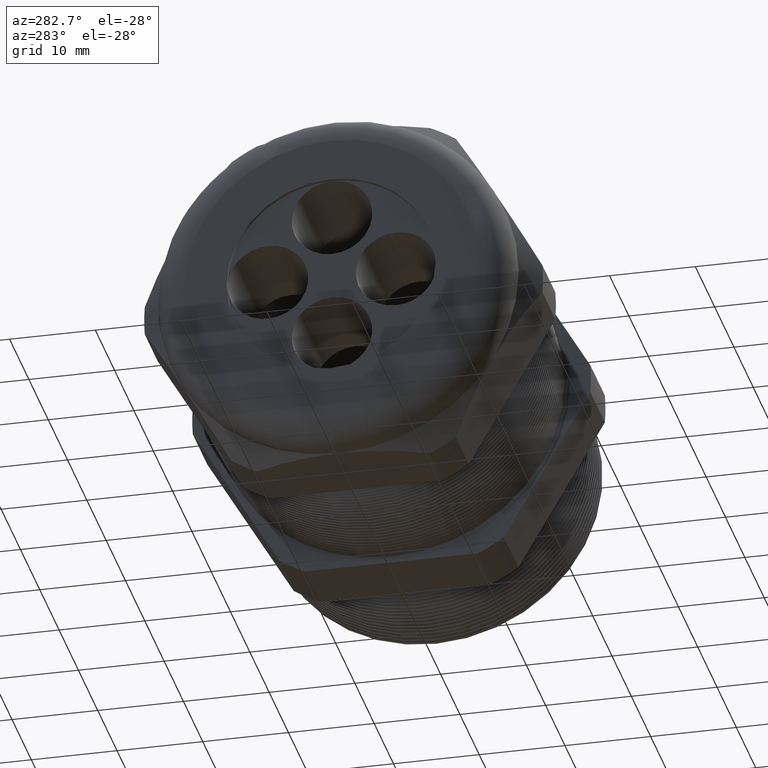
[diagram: clean part render]
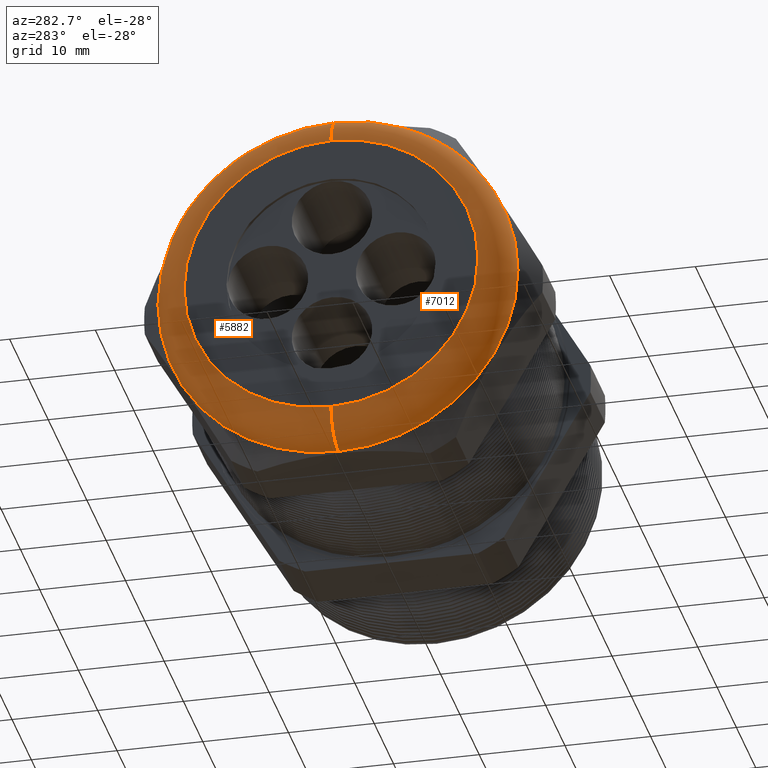
[diagram: same view with one multi-face feature highlighted, each face labeled with its STEP entity id]
A machine part, auxiliary view. The highlighted faces form ONE feature: a constant-radius fillet chain: 2 tangent blend faces with common blend radius 3.81 mm. The faces share edges in the B-rep.
Their STEP definitions:
[1] entity #5882 (Torus):
#1727 = CARTESIAN_POINT ( 'NONE',  ( -1.840000000000000100, 0.0000000000000000000, 0.6749999999999997100 ) ) ;
#1728 = CARTESIAN_POINT ( 'NONE',  ( -1.840000000000000100, 9.184850993605146000E-017, -0.6749999999999997100 ) ) ;
#1729 = DIRECTION ( 'NONE',  ( 0.0000000000000000000, -1.224646799147353200E-016, 1.000000000000000000 ) ) ;
#1730 = DIRECTION ( 'NONE',  ( 0.0000000000000000000, 1.000000000000000000, 1.224646799147353200E-016 ) ) ;
#1731 = CARTESIAN_POINT ( 'NONE',  ( -1.689999999999999900, 8.266365894244631900E-017, -0.6749999999999997100 ) ) ;
#1732 = AXIS2_PLACEMENT_3D ( 'NONE', #1731, #1730, #1729 ) ;
#1733 = CIRCLE ( 'NONE', #1732, 0.1499999999999999700 ) ;
#1734 = CARTESIAN_POINT ( 'NONE',  ( -1.689999999999999900, 1.010333609296566100E-016, 0.8249999999999998400 ) ) ;
#1735 = CARTESIAN_POINT ( 'NONE',  ( -1.689999999999999900, 0.0000000000000000000, -0.8249999999999998400 ) ) ;
#1736 = DIRECTION ( 'NONE',  ( 0.0000000000000000000, 0.0000000000000000000, 1.000000000000000000 ) ) ;
#1737 = DIRECTION ( 'NONE',  ( 1.000000000000000000, 0.0000000000000000000, 0.0000000000000000000 ) ) ;
#1738 = AXIS2_PLACEMENT_3D ( 'NONE', #1744, #1737, #1736 ) ;
#1739 = CIRCLE ( 'NONE', #1738, 0.8249999999999998400 ) ;
#1740 = DIRECTION ( 'NONE',  ( 0.0000000000000000000, 0.0000000000000000000, 1.000000000000000000 ) ) ;
#1741 = DIRECTION ( 'NONE',  ( -1.000000000000000000, 0.0000000000000000000, 0.0000000000000000000 ) ) ;
#1742 = AXIS2_PLACEMENT_3D ( 'NONE', #1745, #1741, #1740 ) ;
#1743 = TOROIDAL_SURFACE ( 'NONE', #1742, 0.6749999999999997100, 0.1499999999999999900 ) ;
#1744 = CARTESIAN_POINT ( 'NONE',  ( -1.689999999999999900, 0.0000000000000000000, 0.0000000000000000000 ) ) ;
#1745 = CARTESIAN_POINT ( 'NONE',  ( -1.689999999999999900, 0.0000000000000000000, 0.0000000000000000000 ) ) ;
#1746 = FACE_OUTER_BOUND ( 'NONE', #5883, .T. ) ;
#1815 = DIRECTION ( 'NONE',  ( 0.0000000000000000000, 0.0000000000000000000, 1.000000000000000000 ) ) ;
#1816 = DIRECTION ( 'NONE',  ( -1.000000000000000000, 0.0000000000000000000, 0.0000000000000000000 ) ) ;
#1817 = CARTESIAN_POINT ( 'NONE',  ( -1.840000000000000100, 0.0000000000000000000, 0.0000000000000000000 ) ) ;
#1818 = AXIS2_PLACEMENT_3D ( 'NONE', #1817, #1816, #1815 ) ;
#1819 = CIRCLE ( 'NONE', #1818, 0.6749999999999997100 ) ;
#1871 = DIRECTION ( 'NONE',  ( 0.0000000000000000000, 0.0000000000000000000, -1.000000000000000000 ) ) ;
#1872 = DIRECTION ( 'NONE',  ( 0.0000000000000000000, -1.000000000000000000, 0.0000000000000000000 ) ) ;
#1873 = CARTESIAN_POINT ( 'NONE',  ( -1.689999999999999900, 0.0000000000000000000, 0.6749999999999997100 ) ) ;
#1874 = AXIS2_PLACEMENT_3D ( 'NONE', #1873, #1872, #1871 ) ;
#1875 = CIRCLE ( 'NONE', #1874, 0.1499999999999999700 ) ;
#5882 = ADVANCED_FACE ( 'NONE', ( #1746 ), #1743, .T. ) ;
#5883 = EDGE_LOOP ( 'NONE', ( #5884, #5888, #5891, #5948 ) ) ;
#5884 = ORIENTED_EDGE ( 'NONE', *, *, #5885, .F. ) ;
#5885 = EDGE_CURVE ( 'NONE', #5886, #5887, #1739, .T. ) ;
#5886 = VERTEX_POINT ( 'NONE', #1735 ) ;
#5887 = VERTEX_POINT ( 'NONE', #1734 ) ;
#5888 = ORIENTED_EDGE ( 'NONE', *, *, #5889, .T. ) ;
#5889 = EDGE_CURVE ( 'NONE', #5886, #5890, #1733, .T. ) ;
#5890 = VERTEX_POINT ( 'NONE', #1728 ) ;
#5891 = ORIENTED_EDGE ( 'NONE', *, *, #5947, .F. ) ;
#5892 = VERTEX_POINT ( 'NONE', #1727 ) ;
#5947 = EDGE_CURVE ( 'NONE', #5892, #5890, #1819, .T. ) ;
#5948 = ORIENTED_EDGE ( 'NONE', *, *, #5949, .F. ) ;
#5949 = EDGE_CURVE ( 'NONE', #5887, #5892, #1875, .T. ) ;
[2] entity #7012 (Torus):
#1727 = CARTESIAN_POINT ( 'NONE',  ( -1.840000000000000100, 0.0000000000000000000, 0.6749999999999997100 ) ) ;
#1728 = CARTESIAN_POINT ( 'NONE',  ( -1.840000000000000100, 9.184850993605146000E-017, -0.6749999999999997100 ) ) ;
#1729 = DIRECTION ( 'NONE',  ( 0.0000000000000000000, -1.224646799147353200E-016, 1.000000000000000000 ) ) ;
#1730 = DIRECTION ( 'NONE',  ( 0.0000000000000000000, 1.000000000000000000, 1.224646799147353200E-016 ) ) ;
#1731 = CARTESIAN_POINT ( 'NONE',  ( -1.689999999999999900, 8.266365894244631900E-017, -0.6749999999999997100 ) ) ;
#1732 = AXIS2_PLACEMENT_3D ( 'NONE', #1731, #1730, #1729 ) ;
#1733 = CIRCLE ( 'NONE', #1732, 0.1499999999999999700 ) ;
#1734 = CARTESIAN_POINT ( 'NONE',  ( -1.689999999999999900, 1.010333609296566100E-016, 0.8249999999999998400 ) ) ;
#1735 = CARTESIAN_POINT ( 'NONE',  ( -1.689999999999999900, 0.0000000000000000000, -0.8249999999999998400 ) ) ;
#1871 = DIRECTION ( 'NONE',  ( 0.0000000000000000000, 0.0000000000000000000, -1.000000000000000000 ) ) ;
#1872 = DIRECTION ( 'NONE',  ( 0.0000000000000000000, -1.000000000000000000, 0.0000000000000000000 ) ) ;
#1873 = CARTESIAN_POINT ( 'NONE',  ( -1.689999999999999900, 0.0000000000000000000, 0.6749999999999997100 ) ) ;
#1874 = AXIS2_PLACEMENT_3D ( 'NONE', #1873, #1872, #1871 ) ;
#1875 = CIRCLE ( 'NONE', #1874, 0.1499999999999999700 ) ;
#3503 = DIRECTION ( 'NONE',  ( 0.0000000000000000000, 0.0000000000000000000, 1.000000000000000000 ) ) ;
#3504 = DIRECTION ( 'NONE',  ( -1.000000000000000000, 0.0000000000000000000, 0.0000000000000000000 ) ) ;
#3505 = CARTESIAN_POINT ( 'NONE',  ( -1.840000000000000100, 0.0000000000000000000, 0.0000000000000000000 ) ) ;
#3506 = AXIS2_PLACEMENT_3D ( 'NONE', #3505, #3504, #3503 ) ;
#3507 = CIRCLE ( 'NONE', #3506, 0.6749999999999997100 ) ;
#3539 = DIRECTION ( 'NONE',  ( 0.0000000000000000000, 0.0000000000000000000, 1.000000000000000000 ) ) ;
#3540 = DIRECTION ( 'NONE',  ( 1.000000000000000000, 0.0000000000000000000, 0.0000000000000000000 ) ) ;
#3541 = CARTESIAN_POINT ( 'NONE',  ( -1.689999999999999900, 0.0000000000000000000, 0.0000000000000000000 ) ) ;
#3542 = AXIS2_PLACEMENT_3D ( 'NONE', #3541, #3540, #3539 ) ;
#3547 = CIRCLE ( 'NONE', #3542, 0.8249999999999998400 ) ;
#3796 = DIRECTION ( 'NONE',  ( 0.0000000000000000000, 0.0000000000000000000, 1.000000000000000000 ) ) ;
#3797 = DIRECTION ( 'NONE',  ( -1.000000000000000000, 0.0000000000000000000, 0.0000000000000000000 ) ) ;
#3798 = AXIS2_PLACEMENT_3D ( 'NONE', #3804, #3797, #3796 ) ;
#3799 = TOROIDAL_SURFACE ( 'NONE', #3798, 0.6749999999999997100, 0.1499999999999999900 ) ;
#3800 = FACE_OUTER_BOUND ( 'NONE', #7013, .T. ) ;
#3804 = CARTESIAN_POINT ( 'NONE',  ( -1.689999999999999900, 0.0000000000000000000, 0.0000000000000000000 ) ) ;
#5886 = VERTEX_POINT ( 'NONE', #1735 ) ;
#5887 = VERTEX_POINT ( 'NONE', #1734 ) ;
#5889 = EDGE_CURVE ( 'NONE', #5886, #5890, #1733, .T. ) ;
#5890 = VERTEX_POINT ( 'NONE', #1728 ) ;
#5892 = VERTEX_POINT ( 'NONE', #1727 ) ;
#5949 = EDGE_CURVE ( 'NONE', #5887, #5892, #1875, .T. ) ;
#6801 = EDGE_CURVE ( 'NONE', #5890, #5892, #3507, .T. ) ;
#6815 = EDGE_CURVE ( 'NONE', #5887, #5886, #3547, .T. ) ;
#6940 = ORIENTED_EDGE ( 'NONE', *, *, #6815, .F. ) ;
#6941 = ORIENTED_EDGE ( 'NONE', *, *, #5949, .T. ) ;
#6942 = ORIENTED_EDGE ( 'NONE', *, *, #6801, .F. ) ;
#7012 = ADVANCED_FACE ( 'NONE', ( #3800 ), #3799, .T. ) ;
#7013 = EDGE_LOOP ( 'NONE', ( #7014, #6940, #6941, #6942 ) ) ;
#7014 = ORIENTED_EDGE ( 'NONE', *, *, #5889, .F. ) ;